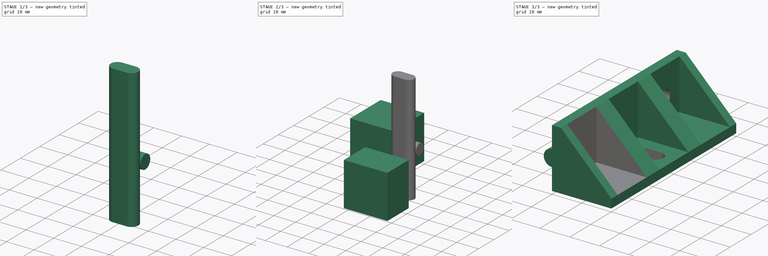
[diagram: build sequence overview — one tinted view per stage of 3, left to right]
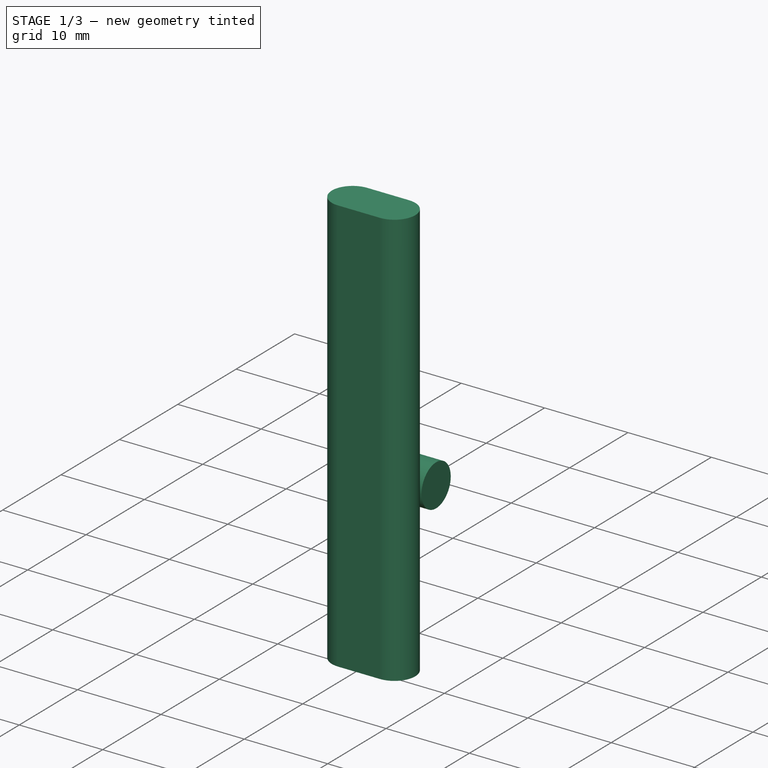
[diagram: stage 1 of 3 — iso view after this stage's code; geometry added in this stage tinted green]
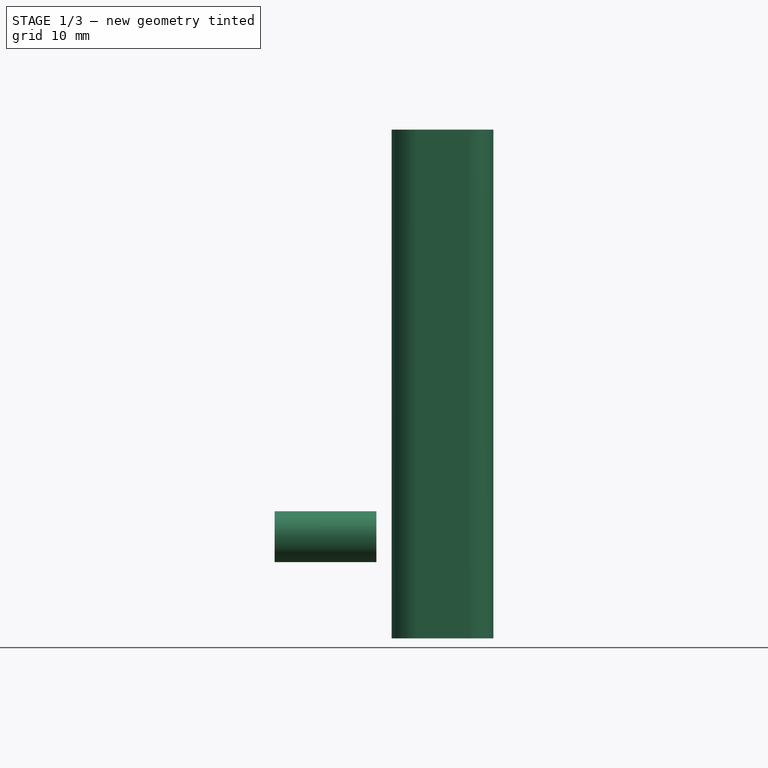
[diagram: stage 1 of 3 — front view after this stage's code; geometry added in this stage tinted green]
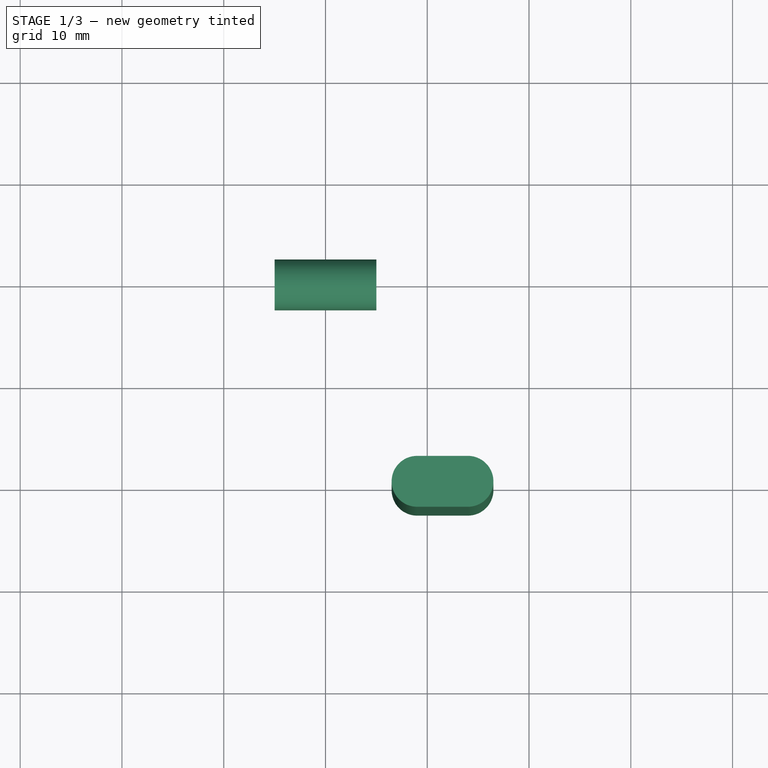
[diagram: stage 1 of 3 — top view after this stage's code; geometry added in this stage tinted green]
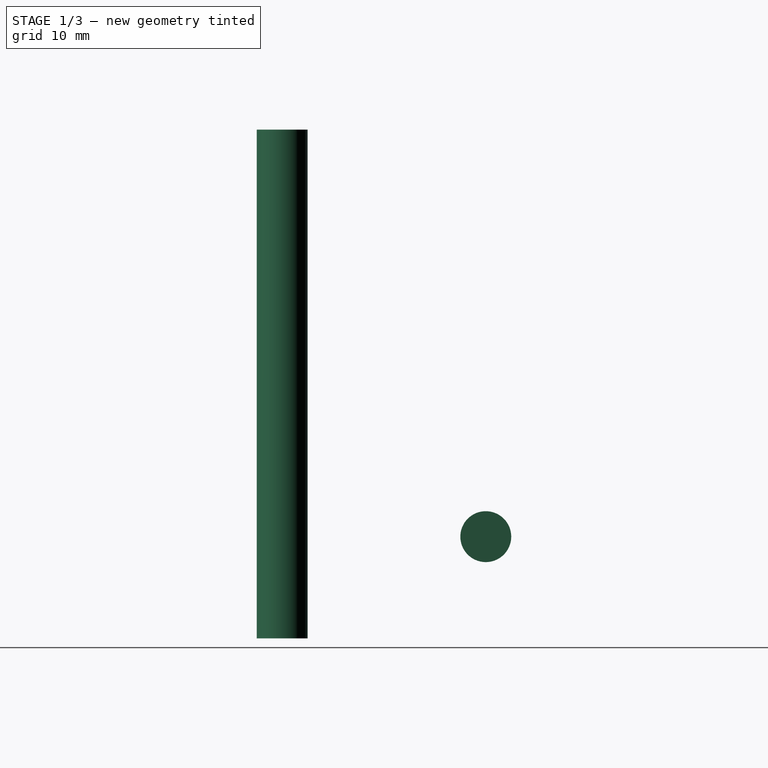
[diagram: stage 1 of 3 — right view after this stage's code; geometry added in this stage tinted green]
FCSTD DOCUMENT  (FreeCAD 0.20R29410 (Git))
Label: leg
License: All rights reserved
LicenseURL: http://en.wikipedia.org/wiki/All_rights_reserved
objects: Sketcher::SketchObject×2, Part::Extrusion×2, Part::Box×2, Spreadsheet::Sheet×1, Part::FeaturePython×1, Part::Cylinder×1, Part::MultiFuse×1, Part::Cut×1
note: 9 computed .brp shape members not serialized (recipe doc carries the construction recipe); baked Part::Feature solids carry a one-line shape summary decoded from their .brp

FEATURE [Part::FeaturePython] Array  label="inside cutter cube array"  # Draft array (typed FeaturePython)
  AlwaysSyncPlacement = false
  Angle = 360
  ArrayType = 0
  Axis = (0,0,1)
  Base = -> Box001
  Center = (0,0,0)
  Count = 3
  ExpandArray = false
  Fuse = false
  IntervalAxis = (0,0,0)
  IntervalX = (100,0,0)
  IntervalY = (0,20,0)
  IntervalZ = (0,0,100)
  NumberCircles = 3
  NumberPolar = 5
  NumberX = 1
  NumberY = 3
  NumberZ = 1
  PlacementList = 3 placements: arithmetic series from (3,-27,3) step (0,20,0) to (3,13,3)
  RadialDistance = 50
  ScaleList = (3) [(1,1,1),(1,1,1),(1,1,1)]
  Symmetry = 1
  TangentialDistance = 25
  expr: .IntervalY.y = <<p>>.item_width
FEATURE [Sketcher::SketchObject] Sketch001  label="bottom bolt hole sketch"
  FullyConstrained = true
  expr: Constraints[7] = <<p>>.bolt_hole_r
  sketch-geometry (4):
    g0: ArcOfCircle CenterX=-2.5 CenterY=0 CenterZ=0 NormalX=0 NormalY=0 NormalZ=1 AngleXU=0 Radius=2.5 StartAngle=1.5708 EndAngle=4.71239
    g1: ArcOfCircle CenterX=2.5 CenterY=0 CenterZ=0 NormalX=0 NormalY=0 NormalZ=1 AngleXU=0 Radius=2.5 StartAngle=4.71239 EndAngle=7.85398
    g2: LineSegment StartX=-2.5 StartY=-2.5 StartZ=0 EndX=2.5 EndY=-2.5 EndZ=0
    g3: LineSegment StartX=2.5 StartY=2.5 StartZ=0 EndX=-2.5 EndY=2.5 EndZ=0
  constraints (9):
    c: Tangent(g0,g2) = -1.5708
    c: Tangent(g2,g1) = -1.5708
    c: Tangent(g1,g3) = -1.5708
    c: Tangent(g3,g0) = -1.5708
    c: Equal(g0,g1)
    c: PointOnObject(g0,g-1)
    c: DistanceX(g3,g3) = 5
    c: Radius(g1) = 2.5
    c: Symmetric(g0,g1,g-2)
FEATURE [Part::Extrusion] Extrude001  label="bottom bolt hole extrude"
  Base = -> Sketch001
  Dir = (0,0,1)
  DirMode = 2
  FaceMakerClass = Part::FaceMakerBullseye
  LengthFwd = 50
  LengthRev = 0
  Placement = pos=(11.5,0,0) rot=(0,0,1;0rad)
  Solid = true
  Symmetric = false
  expr: .Placement.Base.x = <<p>>.length / 2 + <<p>>.wall / 2
FEATURE [Part::Cylinder] Cylinder  label="bolt hole"
  Angle = 360
  AttacherType = Attacher::AttachEngine3D
  FirstAngle = 0
  Height = 10
  Placement = pos=(-5,20,10) rot=(0,1,0;1.5708rad)
  Radius = 2.5
  SecondAngle = 0
  expr: .Placement.Base.x = -Height / 2
  expr: .Placement.Base.y = <<p>>.item_width
  expr: .Placement.Base.z = <<p>>.height / 2
  expr: Radius = <<p>>.bolt_hole_r
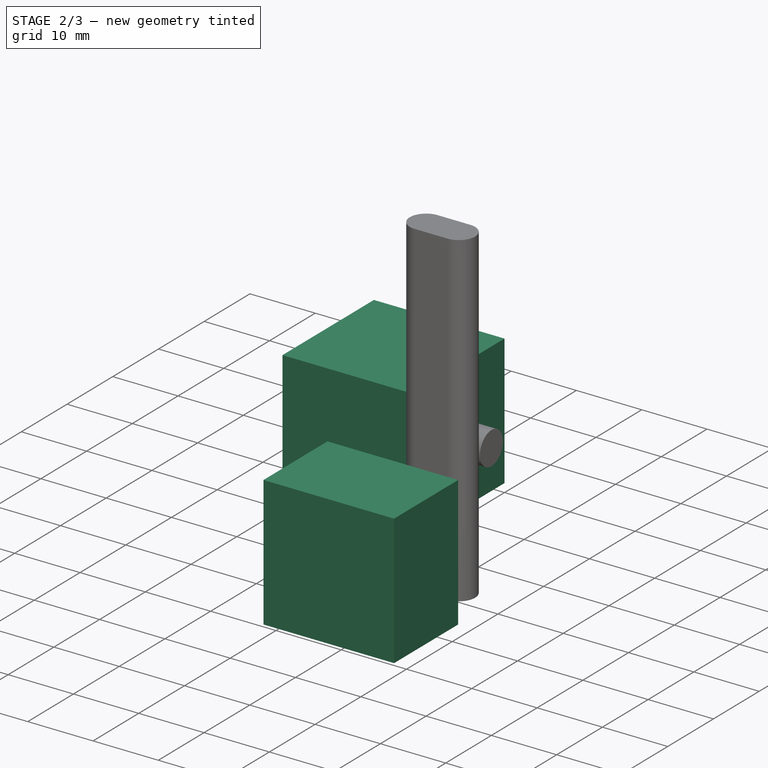
[diagram: stage 2 of 3 — iso view after this stage's code; geometry added in this stage tinted green]
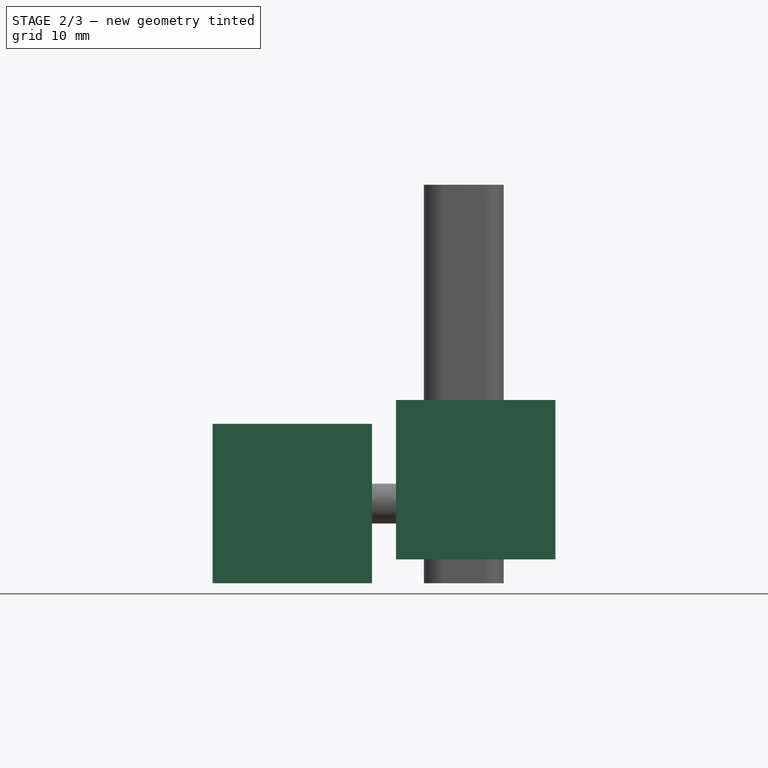
[diagram: stage 2 of 3 — front view after this stage's code; geometry added in this stage tinted green]
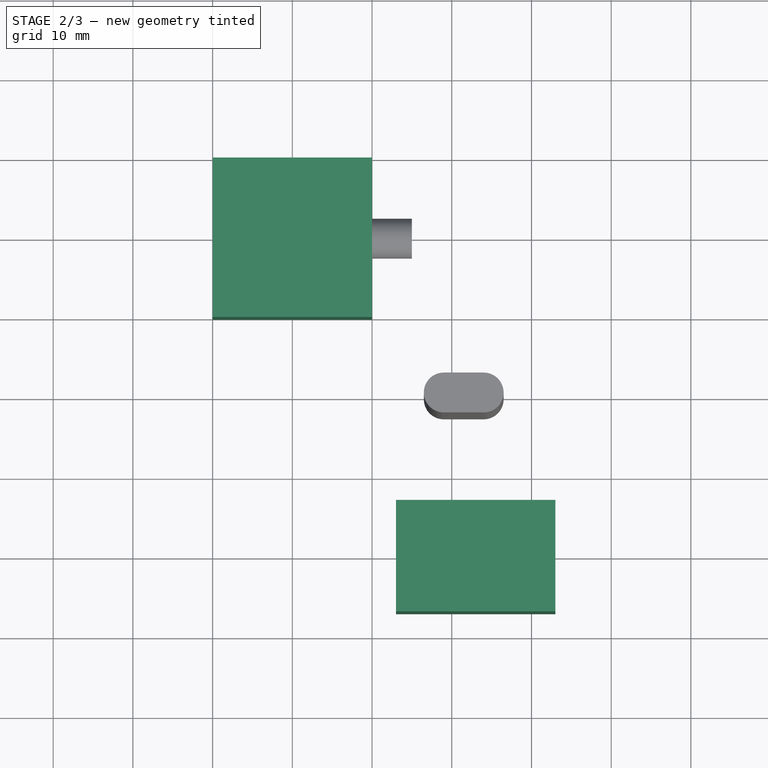
[diagram: stage 2 of 3 — top view after this stage's code; geometry added in this stage tinted green]
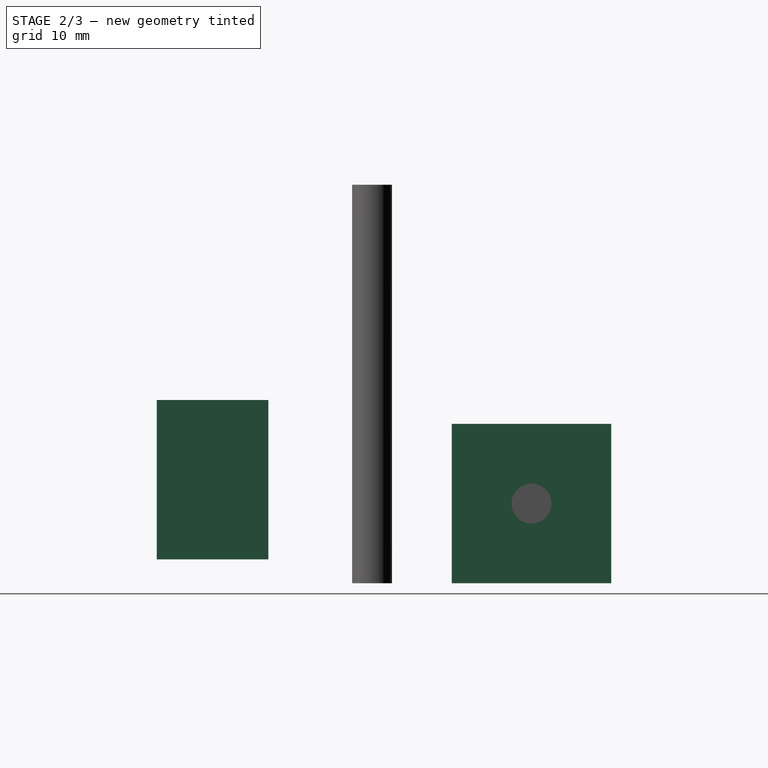
[diagram: stage 2 of 3 — right view after this stage's code; geometry added in this stage tinted green]
FEATURE [Sketcher::SketchObject] Sketch  label="angle sketch"
  FullyConstrained = true
  Placement = pos=(0,0,0) rot=(1,0,0;1.5708rad)
  expr: Constraints[12] = <<p>>.height
  expr: Constraints[13] = <<p>>.length
  expr: Constraints[16] = <<p>>.wall
  expr: Constraints[17] = <<p>>.wall
  expr: Constraints[19] = <<p>>.hole_height
  sketch-geometry (7):
    g0: LineSegment StartX=0 StartY=20 StartZ=0 EndX=3 EndY=20 EndZ=0
    g1: LineSegment StartX=3 StartY=20 StartZ=0 EndX=20 EndY=3 EndZ=0
    g2: LineSegment StartX=20 StartY=3 StartZ=0 EndX=20 EndY=0 EndZ=0
    g3: LineSegment StartX=20 StartY=0 StartZ=0 EndX=0 EndY=0 EndZ=0
    g4: LineSegment StartX=0 StartY=0 StartZ=0 EndX=-5e-16 EndY=7.25 EndZ=0
    g5: LineSegment StartX=0 StartY=20 StartZ=0 EndX=2e-16 EndY=12.75 EndZ=0
    g6: ArcOfCircle CenterX=0 CenterY=10 CenterZ=0 NormalX=0 NormalY=0 NormalZ=1 AngleXU=0 Radius=2.75 StartAngle=1.5708 EndAngle=4.71239
  constraints (21):
    c: PointOnObject(g0,g-2)
    c: Coincident(g1,g0)
    c: Coincident(g2,g1)
    c: PointOnObject(g2,g-1)
    c: Coincident(g3,g2)
    c: Coincident(g3,g-1)
    c: Coincident(g4,g3)
    c: PointOnObject(g4,g-2)
    c: Coincident(g5,g0)
    c: PointOnObject(g5,g-2)
    c: Coincident(g6,g4)
    c: Coincident(g6,g5)
    c: DistanceY(g3,g0) = 20
    c: DistanceX(g3,g3) = 20
    c: Vertical(g2)
    c: Horizontal(g0)
    c: DistanceX(g0,g0) = 3
    c: DistanceY(g2,g2) = 3
    c: Equal(g4,g5)
    c: Diameter(g6) = 5.5
    c: PointOnObject(g6,g-2)
FEATURE [Spreadsheet::Sheet] Spreadsheet  label="p"
  cells = A1=wall; B1(wall)==3mm; A2=height; B2(height)==20mm; A3=length; B3(length)==20mm; A4=item_width; B4(item_width)==20mm; A5=hole_height; B5(hole_height)==5.5mm; A6=bolt_hole_r; B6(bolt_hole_r)==2.5mm
FEATURE [Part::Extrusion] Extrude  label="angle extrude"
  Base = -> Sketch
  Dir = (0,-1,-3e-16)
  DirMode = 2
  FaceMakerClass = Part::FaceMakerBullseye
  LengthFwd = 60
  LengthRev = 0
  Reversed = true
  Solid = true
  Symmetric = true
  expr: LengthFwd = <<p>>.item_width * 3
FEATURE [Part::Box] Box  label="bolt item cube cutter"
  AttacherType = Attacher::AttachEngine3D
  Height = 20
  Length = 20
  Placement = pos=(-20,10,0) rot=(0,0,1;0rad)
  Width = 20
  expr: .Placement.Base.x = -Length
  expr: .Placement.Base.y = <<angle extrude>>.LengthFwd / 2 - Length
  expr: Height = <<p>>.height
  expr: Length = <<p>>.length
  expr: Width = <<p>>.item_width
FEATURE [Part::Box] Box001  label="inside cutter cube"
  AttacherType = Attacher::AttachEngine3D
  Height = 20
  Length = 20
  Placement = pos=(3,-27,3) rot=(0,0,1;0rad)
  Width = 14
  expr: .Placement.Base.x = <<p>>.wall
  expr: .Placement.Base.y = -<<angle extrude>>.LengthFwd / 2 + <<p>>.wall
  expr: .Placement.Base.z = <<p>>.wall
  expr: Height = <<p>>.height
  expr: Length = <<p>>.length
  expr: Width = <<p>>.item_width - <<p>>.wall * 2
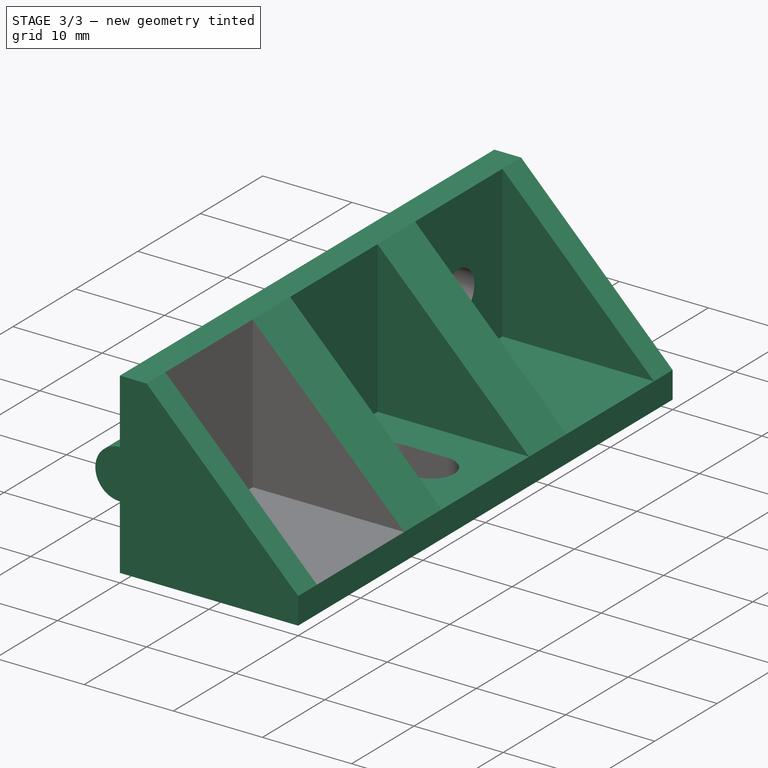
[diagram: stage 3 of 3 — iso view after this stage's code; geometry added in this stage tinted green]
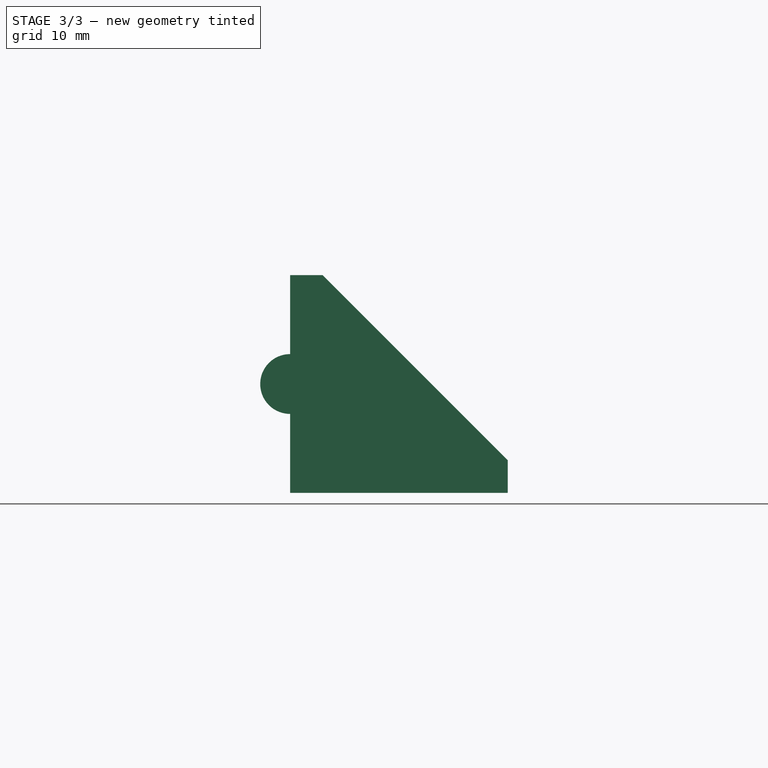
[diagram: stage 3 of 3 — front view after this stage's code; geometry added in this stage tinted green]
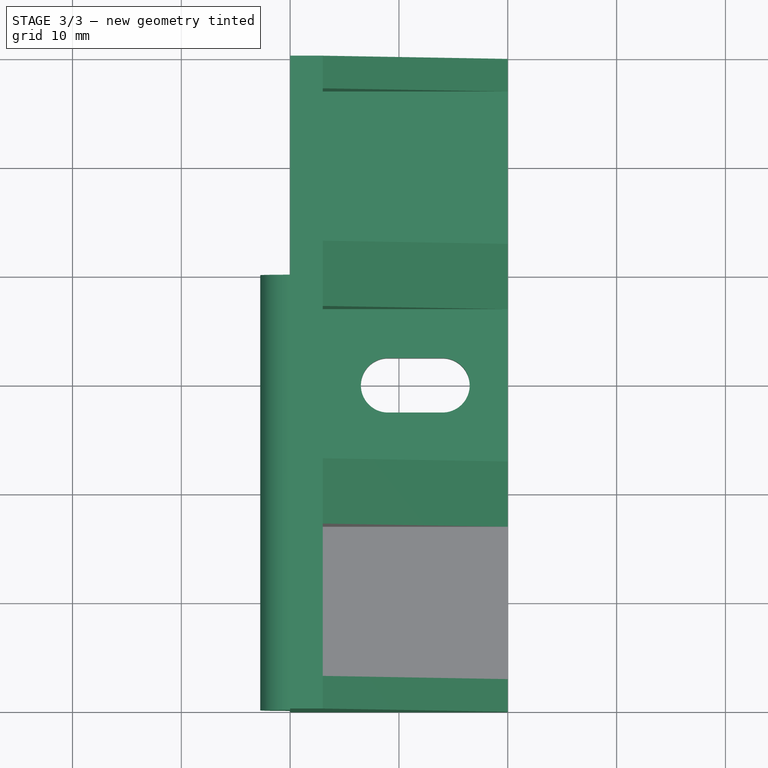
[diagram: stage 3 of 3 — top view after this stage's code; geometry added in this stage tinted green]
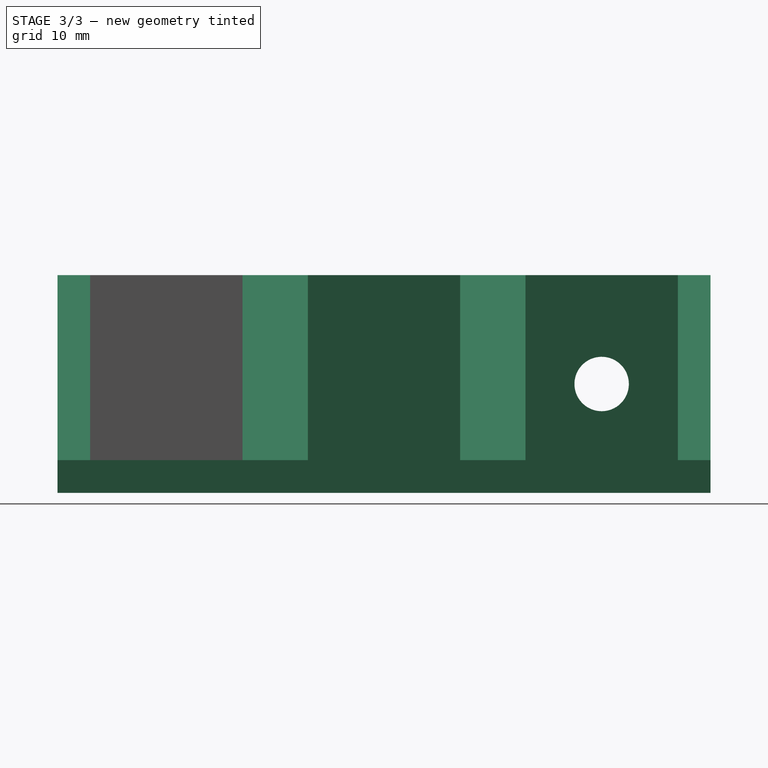
[diagram: stage 3 of 3 — right view after this stage's code; geometry added in this stage tinted green]
FEATURE [Part::MultiFuse] Fusion  label="leg extract"
  Shapes = -> [Array,Box,Extrude001,Cylinder]
FEATURE [Part::Cut] Cut  label="leg cut"
  Base = -> Extrude
  Tool = -> Fusion
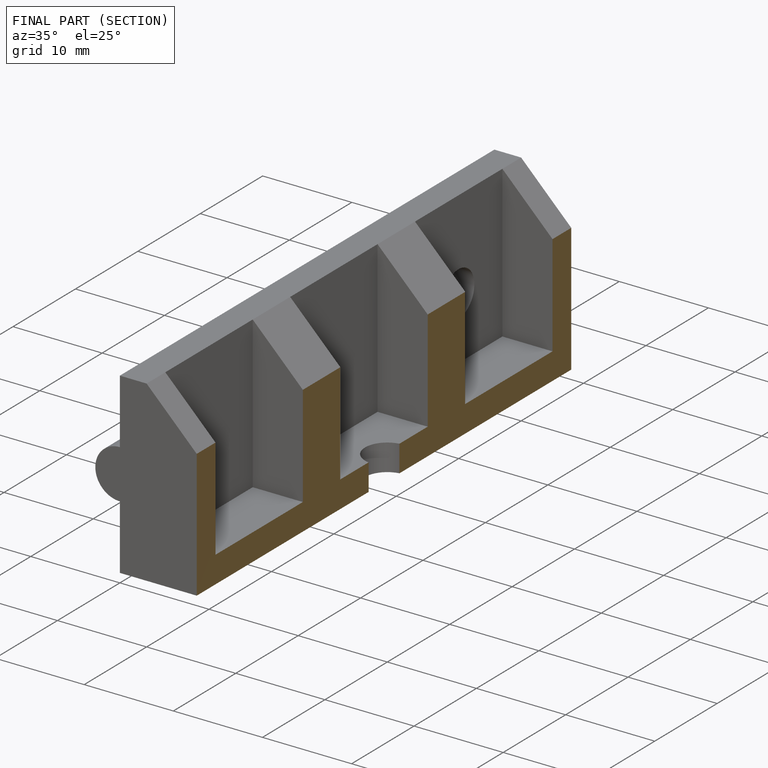
[diagram: finished part — half-section view (interior)]
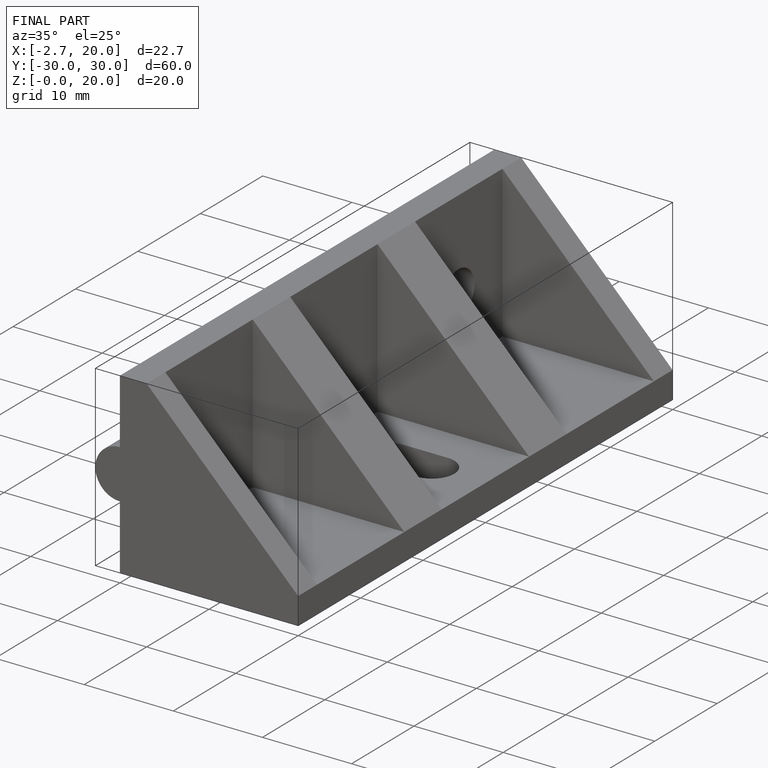
[diagram: finished part — iso view with bounding-box wireframe]
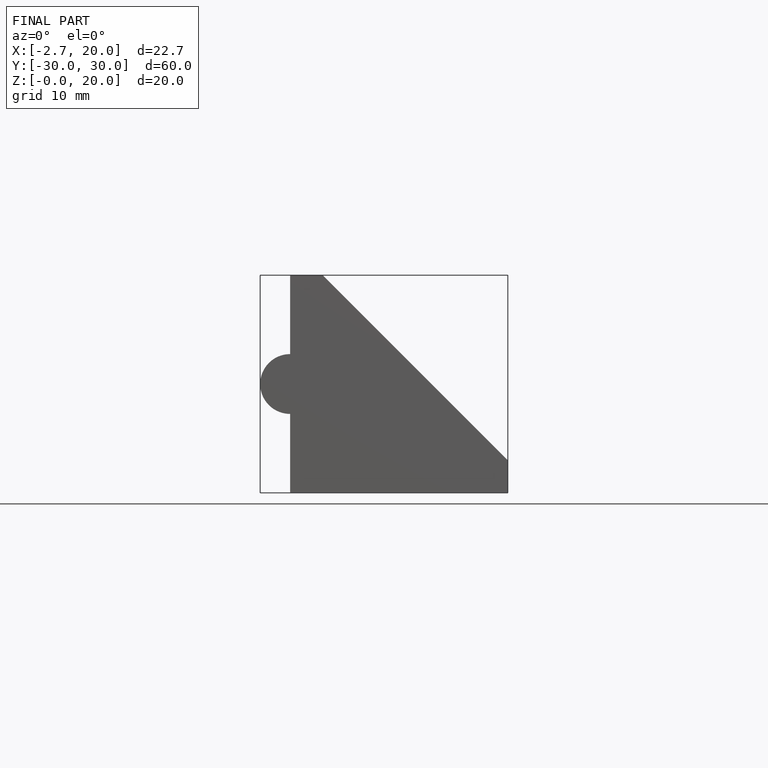
[diagram: finished part — front view with bounding-box wireframe]
